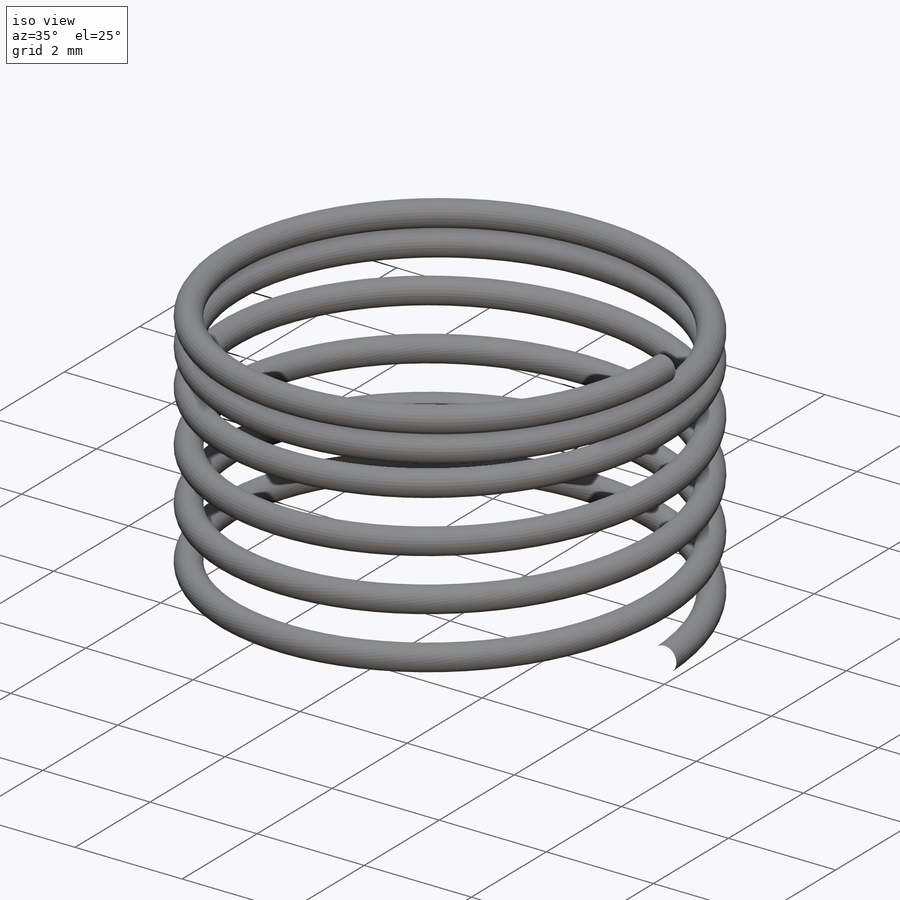
[diagram: iso view]
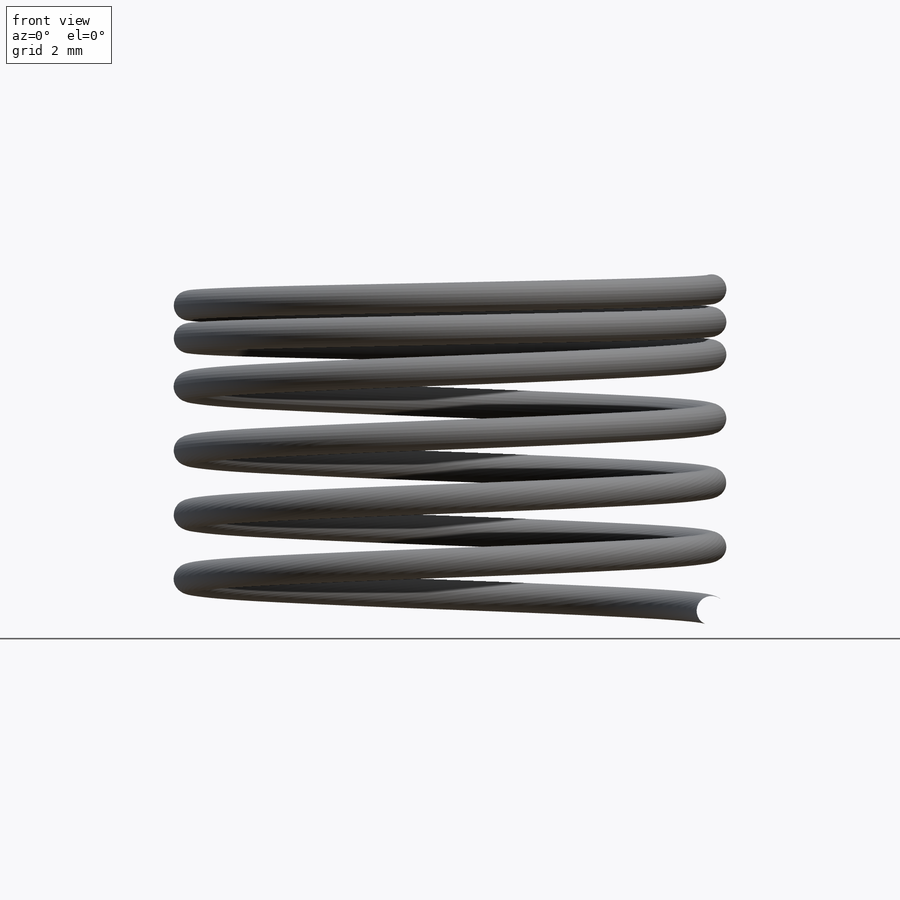
[diagram: front view]
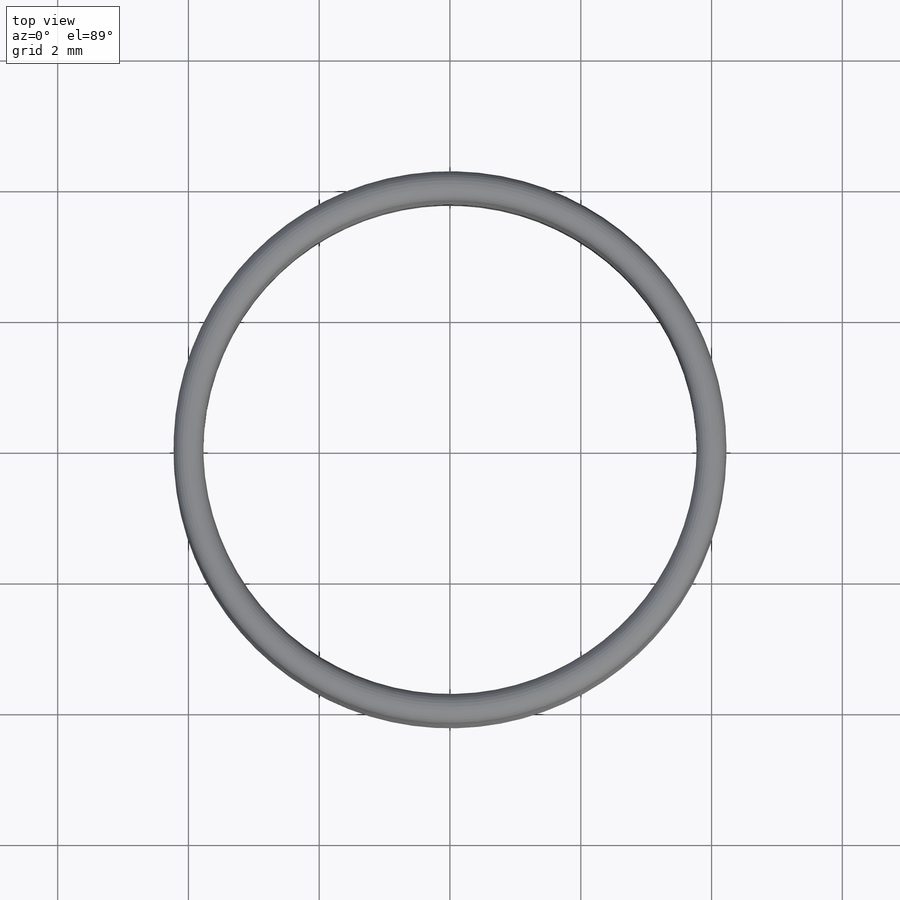
[diagram: top view]
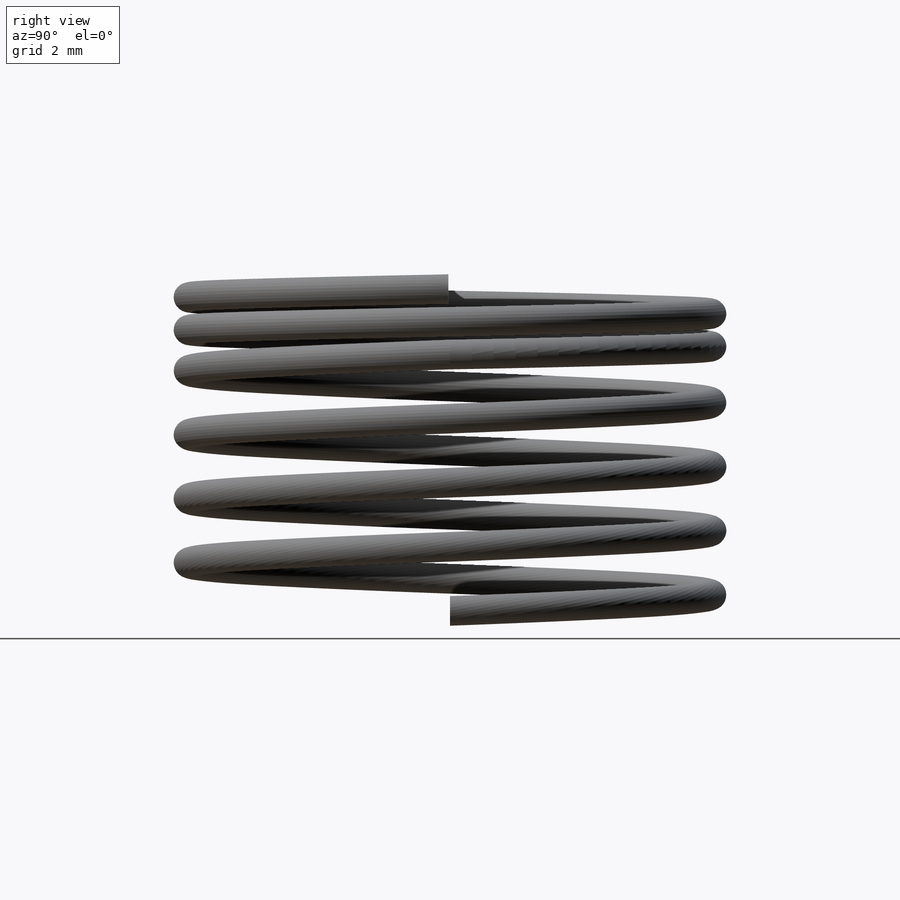
[diagram: right view]
SOLIDWORKS PART (.sldprt)
format: sldprt  version: not decoded by parser v0  size: 885,760 bytes
history: native  units: mm
features: sketch x10, helix x3, sweep x3, plane x2, fillet x2, material x1 (+13 scaffold rows collapsed)
feature tree (34):
  scaffold x13  (default folders/planes/origin — collapsed)
  material  "Alloy Steel"
  sketch  "Sketch4"  dims[D1=8.0mm]
  helix  "Helix/Spiral2"  Pitch=1mm
  sketch  "Sketch8"  dims[D1=1.0mm D2=~8.251318mm]
  sketch  "Sketch9"  dims[D1=~3.361775mm]
  plane  "Plane2"
  sketch  "Sketch10"  dims[D1=8.0mm]
  helix  "Helix/Spiral4"  Pitch=3.9206mm
  sketch  "Sketch11"  dims[D1=3.9206mm D2=~10.733363mm]
  sketch  "Sketch12"  dims[D1=~7.252423mm]
  plane  "Plane3"
  sketch  "Sketch13"  dims[D1=8.0mm]
  helix  "Helix/Spiral5"  Pitch=1mm
  sketch  "Sketch14"  dims[D1=0.455mm]
  sweep  "Sweep1"
  sketch  "Sketch16"  dims[D1=0.455mm]
  sweep  "Sweep2"
  sketch  "Sketch17"  dims[D1=0.455mm]
  sweep  "Sweep3"
  fillet  "Fillet2"  Radius=0.025mm
  fillet  "Fillet3"  Radius=0.025mm
decode coverage: 15 of 18 modeling features carry decoded parameters
note: ~ marks probable driven/reference dimensions
note: suppression state not decoded; provenance and decode notes live in map.json
